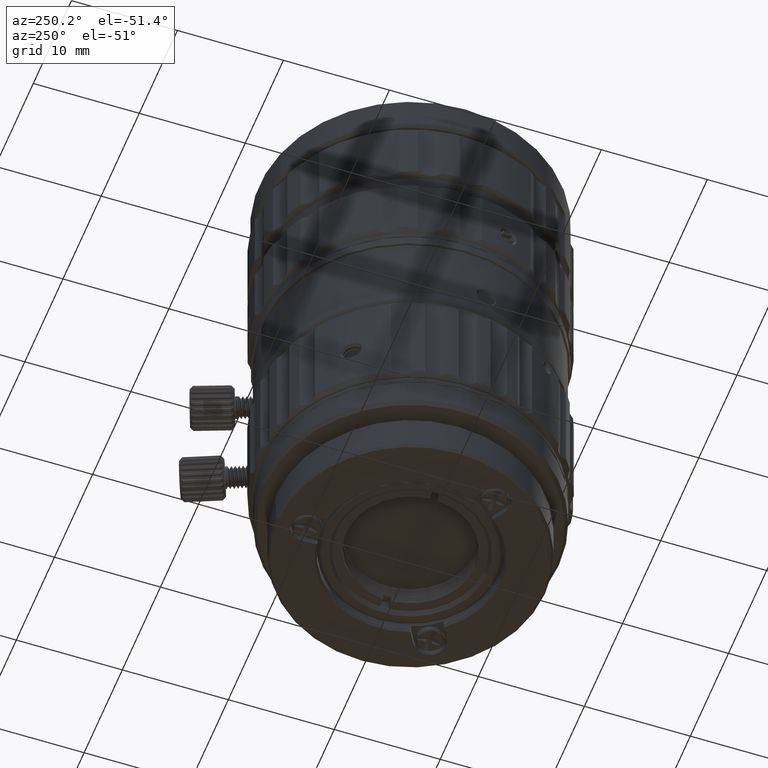
[diagram: clean part render]
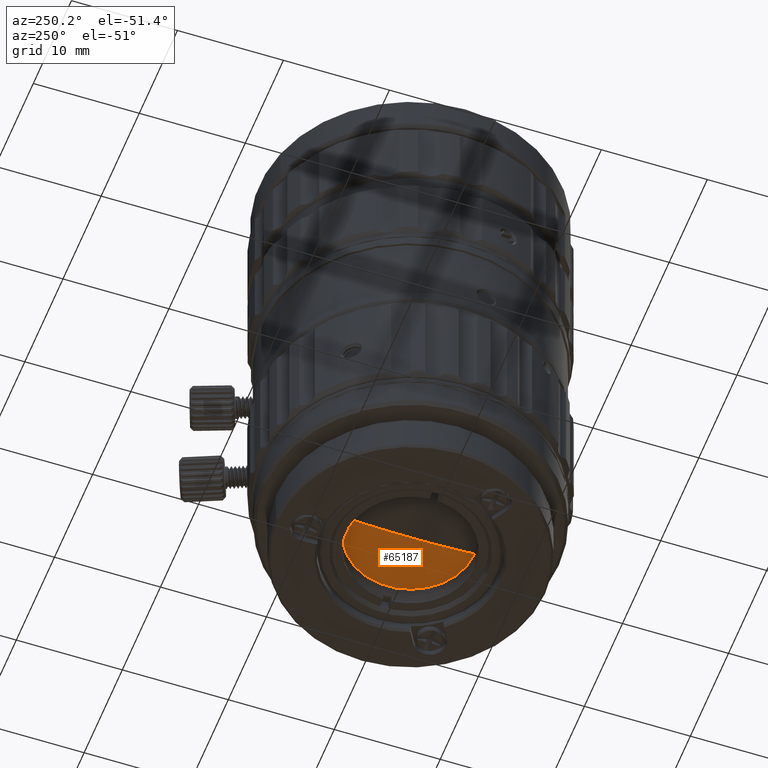
[diagram: same view with one face highlighted and labeled with its STEP entity id]
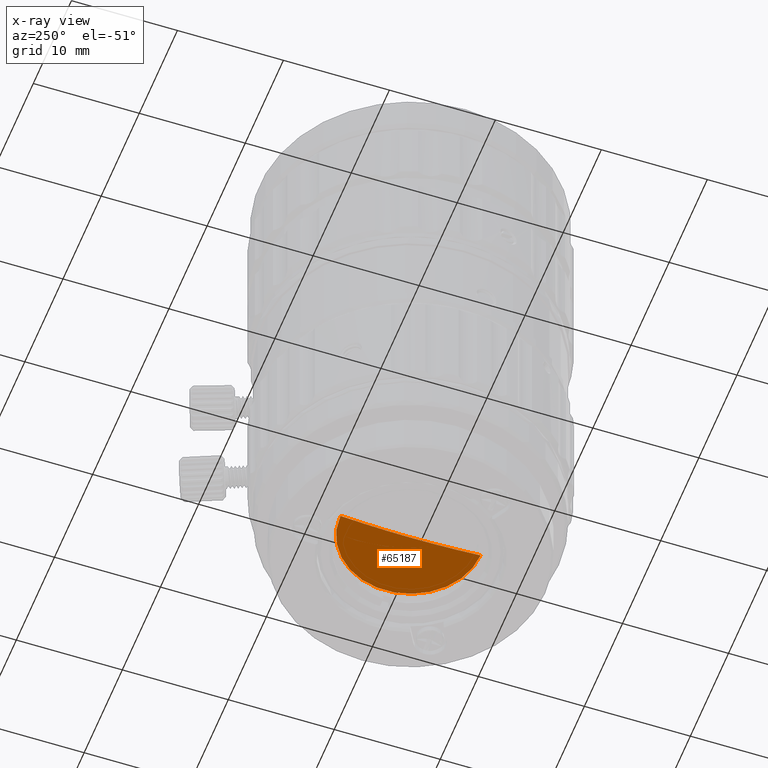
[diagram: x-ray of the same camera — body ghosted, the highlighted face saturated]
A machine part, auxiliary view. The second image highlights one B-rep face of the part: STEP entity #65187.
The next image is the same camera in x-ray: the body ghosted, the highlighted face saturated — about 0% of this face is hidden behind the body in this view.
In plain terms, the highlighted spherical surface has radius 77.267 mm.
Its self-contained STEP definition (entity closure, byte-faithful):
#799 = EDGE_CURVE ( 'NONE', #51084, #77670, #52503, .T. ) ;
#4305 = CARTESIAN_POINT ( 'NONE',  ( 0.000000000000000000, 0.000000000000000000, 78.52105819800600273 ) ) ;
#8818 = DIRECTION ( 'NONE',  ( 0.000000000000000000, 1.000000000000000000, 0.000000000000000000 ) ) ;
#9842 = DIRECTION ( 'NONE',  ( 1.000000000000000000, 1.224646799147353207E-16, 7.498798913309293513E-33 ) ) ;
#10471 = DIRECTION ( 'NONE',  ( 3.755206112023999773E-11, 1.000000000000000000, 0.000000000000000000 ) ) ;
#11264 = DIRECTION ( 'NONE',  ( 0.000000000000000000, 0.000000000000000000, 1.000000000000000000 ) ) ;
#11690 = CIRCLE ( 'NONE', #42889, 6.617127953598999746 ) ;
#15377 = EDGE_LOOP ( 'NONE', ( #70094, #68609, #73296 ) ) ;
#15532 = DIRECTION ( 'NONE',  ( -1.224646799147353454E-16, 1.000000000000000000, 0.000000000000000000 ) ) ;
#16902 = DIRECTION ( 'NONE',  ( -1.000000000000000000, 0.000000000000000000, 0.000000000000000000 ) ) ;
#18521 = AXIS2_PLACEMENT_3D ( 'NONE', #4305, #16902, #61169 ) ;
#23883 = CARTESIAN_POINT ( 'NONE',  ( 0.000000000000000000, 0.000000000000000000, 1.537924287741599727 ) ) ;
#26118 = EDGE_CURVE ( 'NONE', #51084, #50487, #11690, .T. ) ;
#34033 = DIRECTION ( 'NONE',  ( 1.000000000000000000, -0.000000000000000000, 0.000000000000000000 ) ) ;
#39365 = AXIS2_PLACEMENT_3D ( 'NONE', #64896, #34033, #8818 ) ;
#42889 = AXIS2_PLACEMENT_3D ( 'NONE', #23883, #11264, #10471 ) ;
#48610 = AXIS2_PLACEMENT_3D ( 'NONE', #62725, #9842, #15532 ) ;
#50487 = VERTEX_POINT ( 'NONE', #61722 ) ;
#51084 = VERTEX_POINT ( 'NONE', #76182 ) ;
#52503 = CIRCLE ( 'NONE', #48610, 77.26699999999999591 ) ;
#61169 = DIRECTION ( 'NONE',  ( 0.000000000000000000, 0.000000000000000000, 1.000000000000000000 ) ) ;
#61722 = CARTESIAN_POINT ( 'NONE',  ( 2.484867933539982405E-10, 6.617127953598999746, 1.537924287741599727 ) ) ;
#62725 = CARTESIAN_POINT ( 'NONE',  ( 0.000000000000000000, 0.000000000000000000, 78.52105819800600273 ) ) ;
#64896 = CARTESIAN_POINT ( 'NONE',  ( 0.000000000000000000, 0.000000000000000000, 78.52105819800600273 ) ) ;
#65187 = ADVANCED_FACE ( 'NONE', ( #77506 ), #70603, .T. ) ;
#67639 = CIRCLE ( 'NONE', #18521, 77.26699999999999591 ) ;
#68609 = ORIENTED_EDGE ( 'NONE', *, *, #799, .T. ) ;
#70094 = ORIENTED_EDGE ( 'NONE', *, *, #26118, .F. ) ;
#70603 = SPHERICAL_SURFACE ( 'NONE', #39365, 77.26699999999999591 ) ;
#73296 = ORIENTED_EDGE ( 'NONE', *, *, #76844, .F. ) ;
#75331 = CARTESIAN_POINT ( 'NONE',  ( 0.000000000000000000, 9.462478422971856924E-15, 1.254058198006002822 ) ) ;
#76182 = CARTESIAN_POINT ( 'NONE',  ( -8.215621400966117868E-16, -6.617127953598999746, 1.537924287741599727 ) ) ;
#76844 = EDGE_CURVE ( 'NONE', #50487, #77670, #67639, .T. ) ;
#77506 = FACE_OUTER_BOUND ( 'NONE', #15377, .T. ) ;
#77670 = VERTEX_POINT ( 'NONE', #75331 ) ;